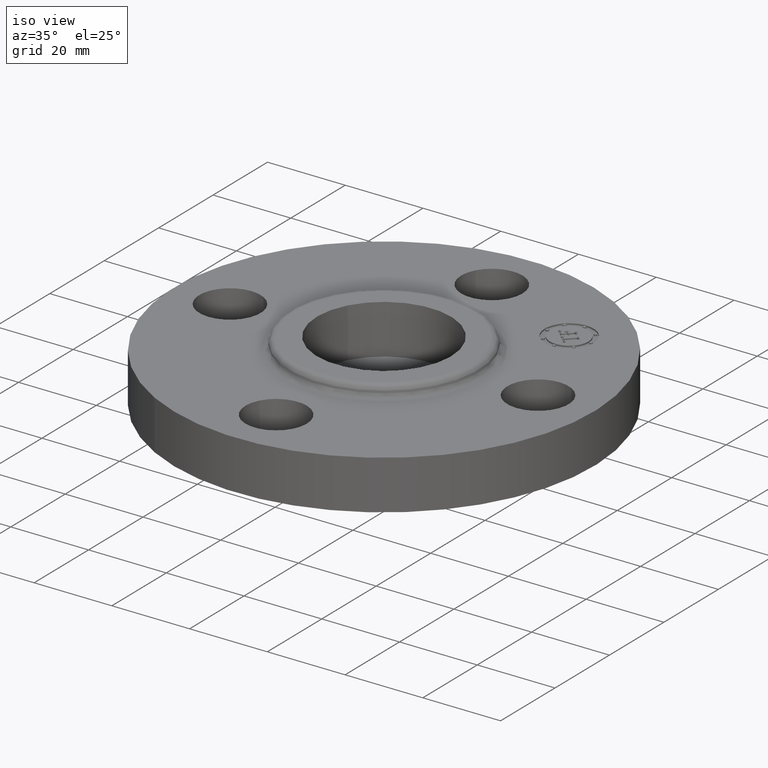
[diagram: clean part render]
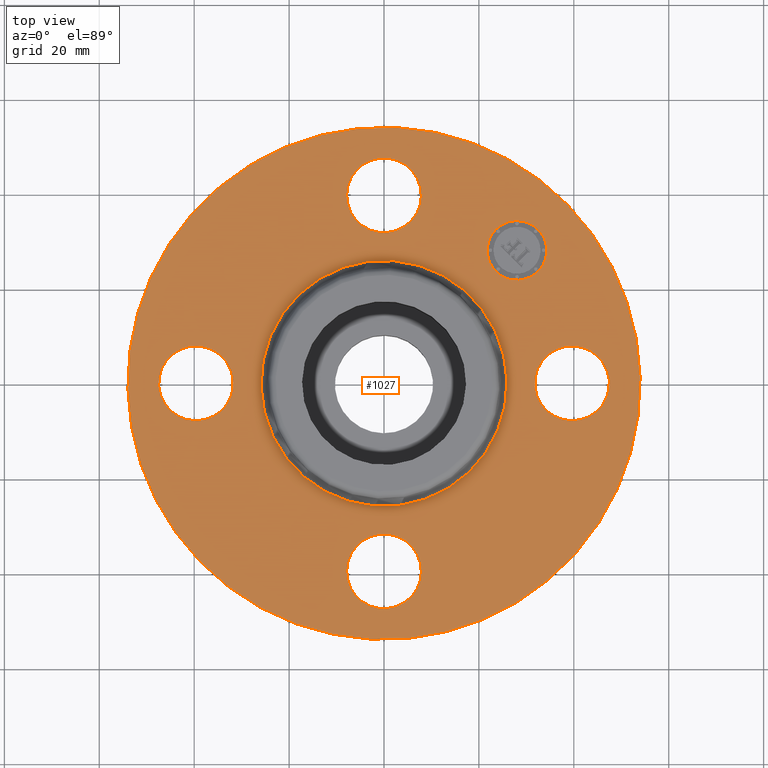
[diagram: tour spotlight — one face highlighted and labeled with its STEP entity id]
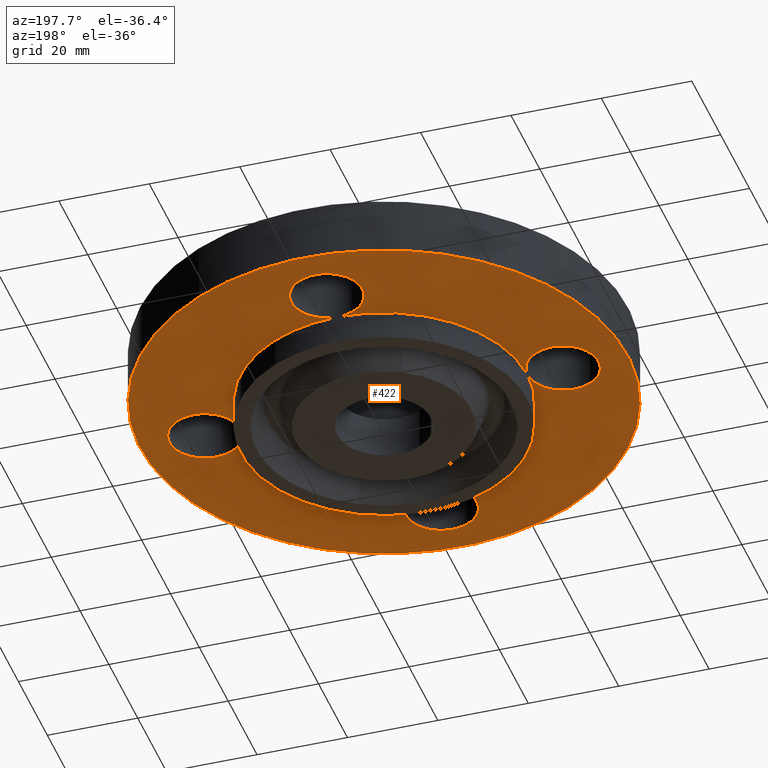
[diagram: tour spotlight — one face highlighted and labeled with its STEP entity id]
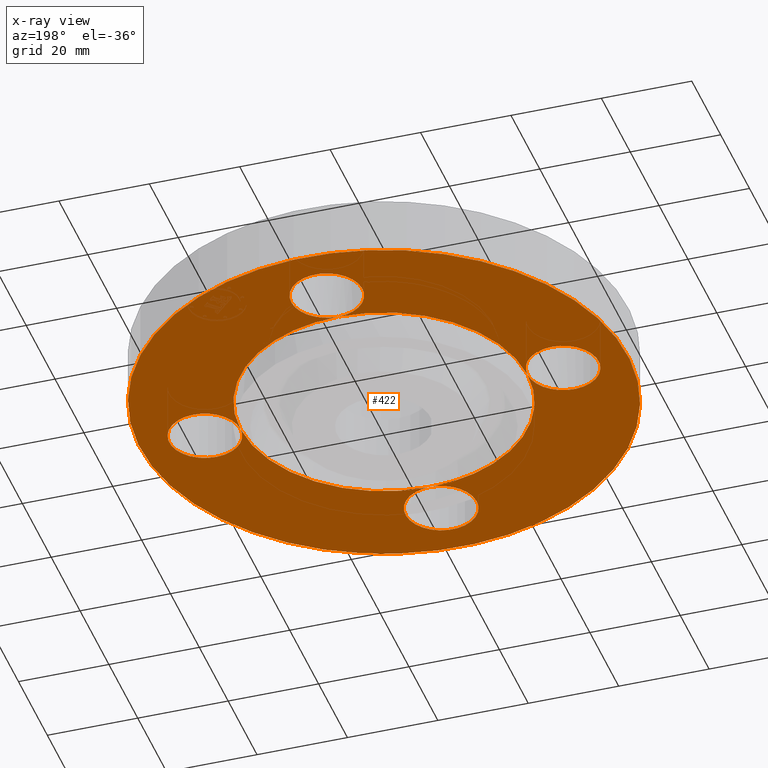
[diagram: x-ray of the same camera — body ghosted, this tour face saturated]
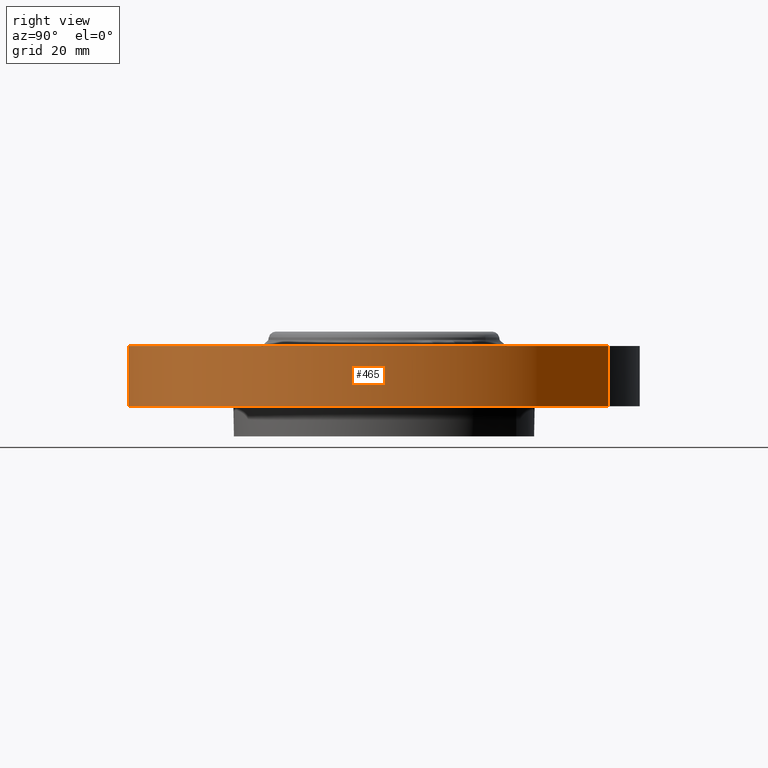
[diagram: tour spotlight — one face highlighted and labeled with its STEP entity id]
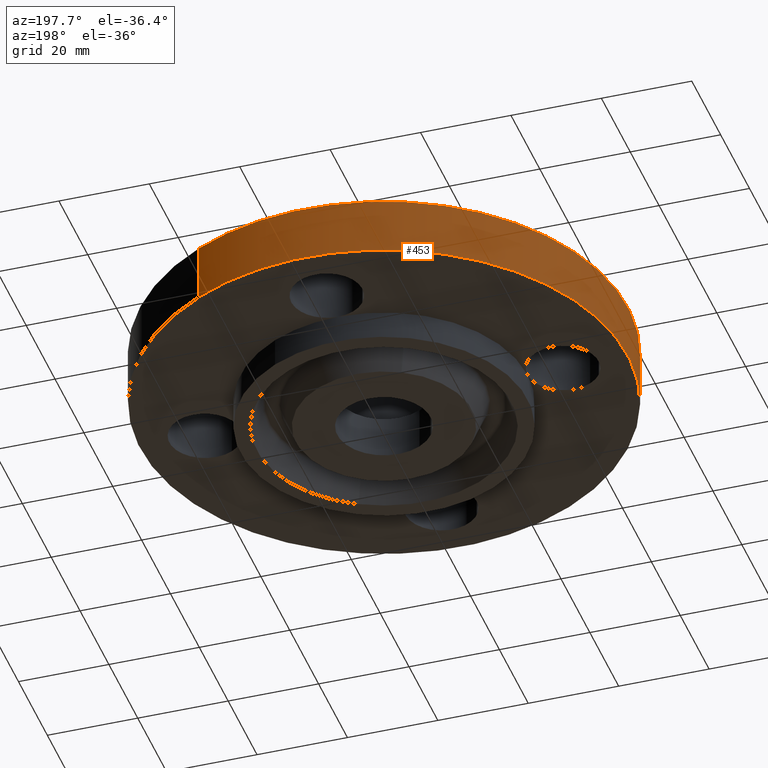
[diagram: tour spotlight — one face highlighted and labeled with its STEP entity id]
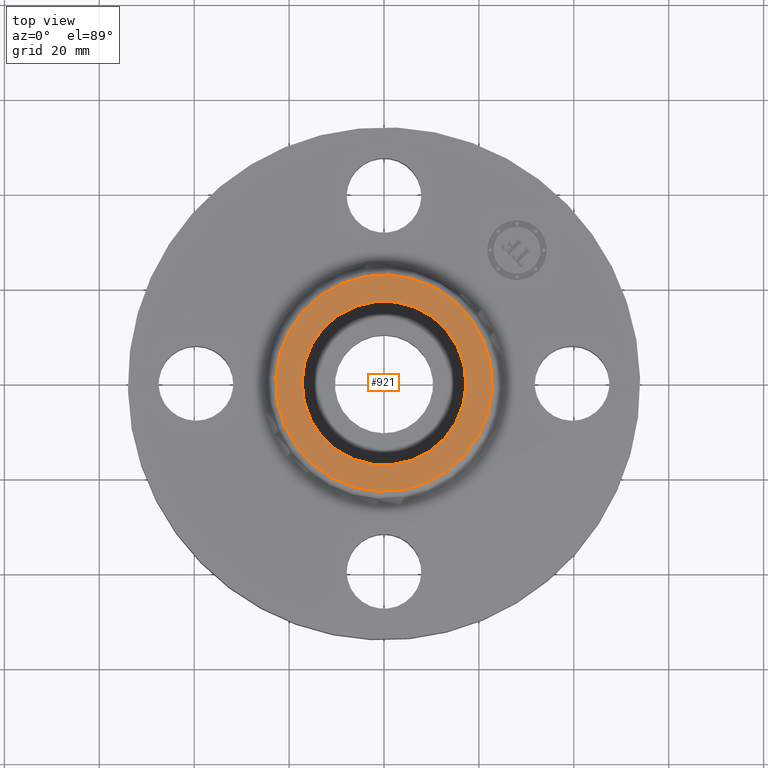
[diagram: tour spotlight — one face highlighted and labeled with its STEP entity id]
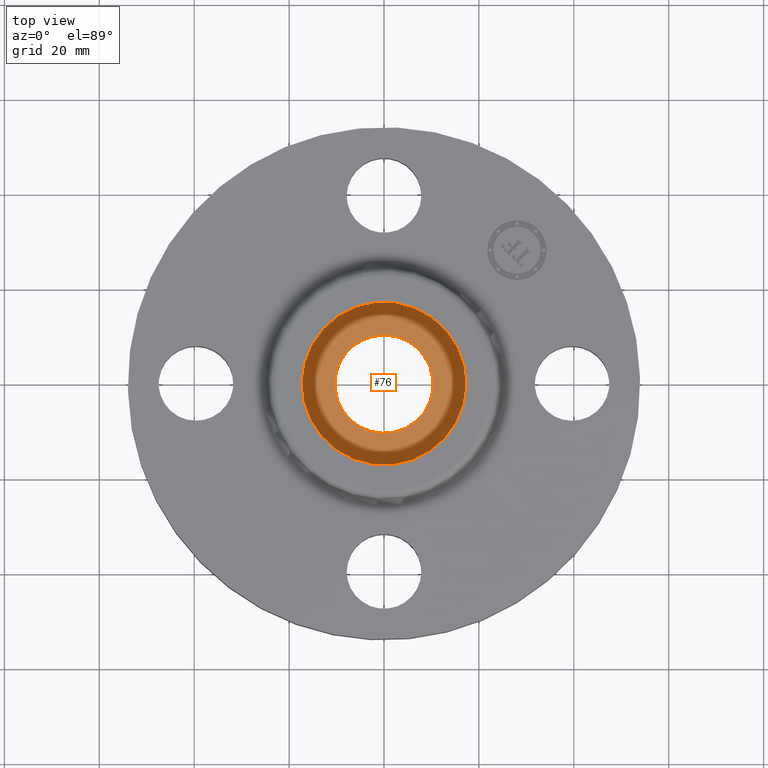
[diagram: tour spotlight — one face highlighted and labeled with its STEP entity id]
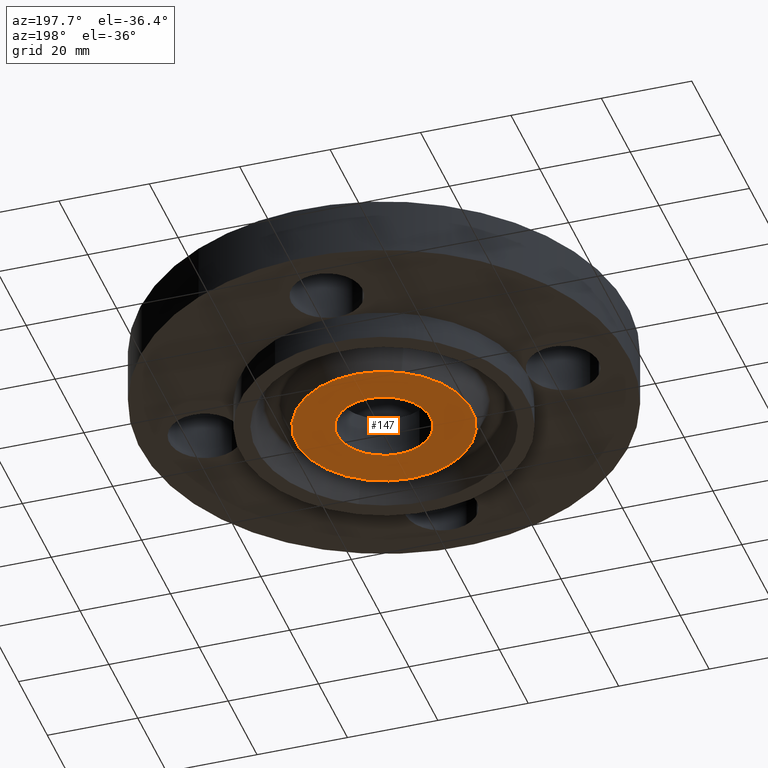
[diagram: tour spotlight — one face highlighted and labeled with its STEP entity id]
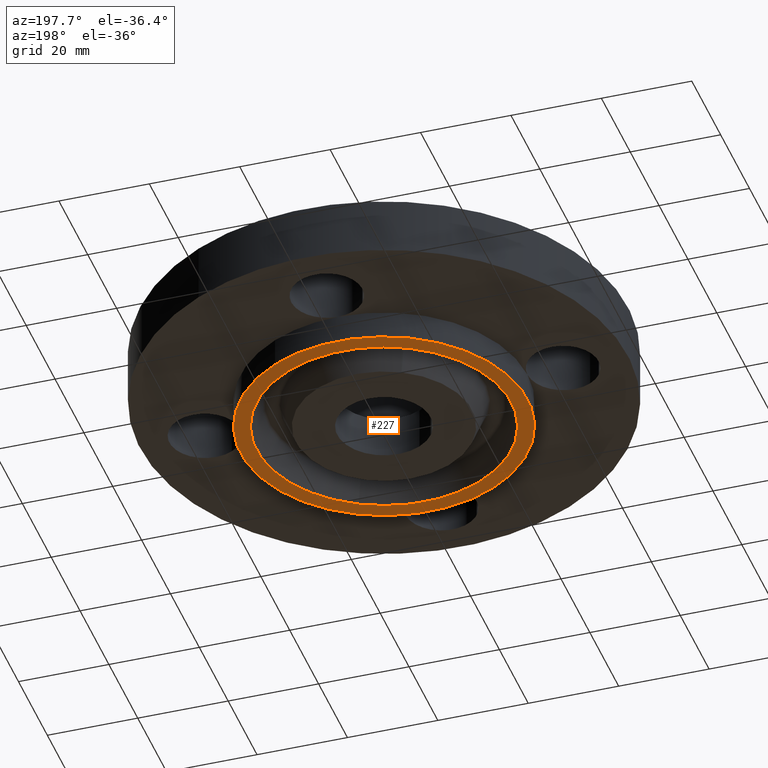
[diagram: tour spotlight — one face highlighted and labeled with its STEP entity id]
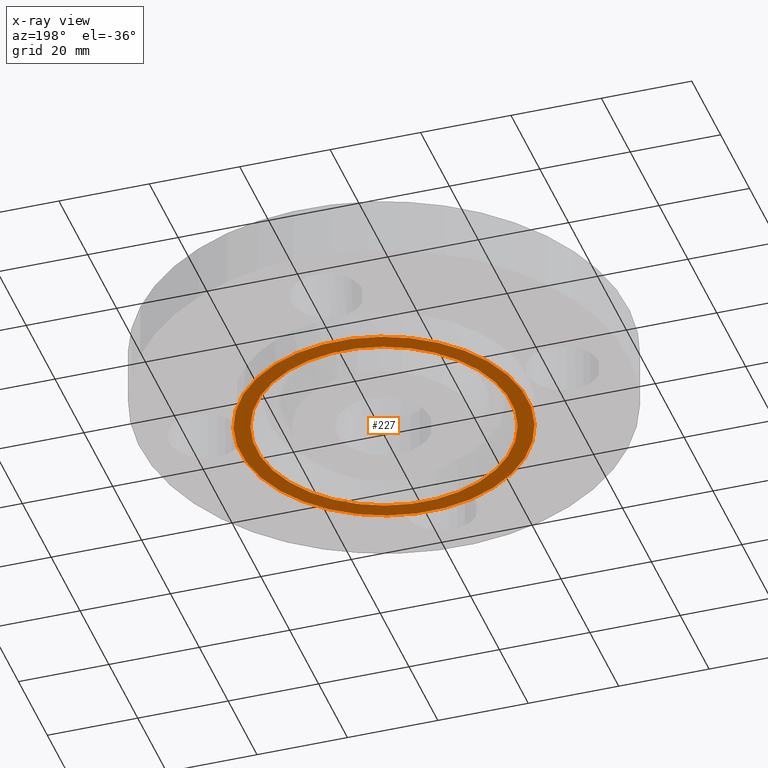
[diagram: x-ray of the same camera — body ghosted, this tour face saturated]
A machine part: a face-by-face anatomy tour. The part has 422 B-rep faces; the first image is the clean iso view, then the 8 largest visible faces are spotlighted one at a time (largest first), each with its STEP entity span.

Face 1 — top view, entity #1027. In plain terms, the highlighted planar face has unit normal (0, 0, -1).
Definition (entity closure, byte-faithful):
#437=AXIS2_PLACEMENT_3D('Circle Axis2P3D',#435,#436,$) ;
#456=AXIS2_PLACEMENT_3D('Circle Axis2P3D',#454,#455,$) ;
#487=AXIS2_PLACEMENT_3D('Circle Axis2P3D',#485,#486,$) ;
#499=AXIS2_PLACEMENT_3D('Circle Axis2P3D',#497,#498,$) ;
#531=AXIS2_PLACEMENT_3D('Circle Axis2P3D',#529,#530,$) ;
#543=AXIS2_PLACEMENT_3D('Circle Axis2P3D',#541,#542,$) ;
#575=AXIS2_PLACEMENT_3D('Circle Axis2P3D',#573,#574,$) ;
#587=AXIS2_PLACEMENT_3D('Circle Axis2P3D',#585,#586,$) ;
#619=AXIS2_PLACEMENT_3D('Circle Axis2P3D',#617,#618,$) ;
#631=AXIS2_PLACEMENT_3D('Circle Axis2P3D',#629,#630,$) ;
#649=AXIS2_PLACEMENT_3D('Circle Axis2P3D',#647,#648,$) ;
#684=AXIS2_PLACEMENT_3D('Circle Axis2P3D',#682,#683,$) ;
#983=AXIS2_PLACEMENT_3D('Plane Axis2P3D',#980,#981,#982) ;
#1011=AXIS2_PLACEMENT_3D('Circle Axis2P3D',#1009,#1010,$) ;
#1020=AXIS2_PLACEMENT_3D('Circle Axis2P3D',#1018,#1019,$) ;
#432=CARTESIAN_POINT('Vertex',(-1.01877926954,-1.86486294402,0.500000000002)) ;
#435=CARTESIAN_POINT('Axis2P3D Location',(0.,0.,0.500000000002)) ;
#439=CARTESIAN_POINT('Vertex',(1.01877926954,1.86486294402,0.500000000002)) ;
#454=CARTESIAN_POINT('Axis2P3D Location',(0.,0.,0.500000000002)) ;
#475=CARTESIAN_POINT('Vertex',(-1.70862191697,-0.272050594187,0.500000000002)) ;
#482=CARTESIAN_POINT('Vertex',(-1.41137808304,0.272050594187,0.500000000002)) ;
#485=CARTESIAN_POINT('Axis2P3D Location',(-1.56000000001,-2.86567351002E-016,0.500000000002)) ;
#497=CARTESIAN_POINT('Axis2P3D Location',(-1.56000000001,-2.86567351002E-016,0.500000000002)) ;
#519=CARTESIAN_POINT('Vertex',(-0.272050594187,1.70862191697,0.500000000002)) ;
#526=CARTESIAN_POINT('Vertex',(0.272050594187,1.41137808304,0.500000000002)) ;
#529=CARTESIAN_POINT('Axis2P3D Location',(0.,1.56000000001,0.500000000002)) ;
#541=CARTESIAN_POINT('Axis2P3D Location',(0.,1.56000000001,0.500000000002)) ;
#563=CARTESIAN_POINT('Vertex',(1.70862191697,0.272050594187,0.500000000002)) ;
#570=CARTESIAN_POINT('Vertex',(1.41137808304,-0.272050594187,0.500000000002)) ;
#573=CARTESIAN_POINT('Axis2P3D Location',(1.56000000001,-1.84218784217E-016,0.500000000002)) ;
#585=CARTESIAN_POINT('Axis2P3D Location',(1.56000000001,-1.84218784217E-016,0.500000000002)) ;
#607=CARTESIAN_POINT('Vertex',(0.272050594187,-1.70862191697,0.500000000002)) ;
#614=CARTESIAN_POINT('Vertex',(-0.272050594187,-1.41137808304,0.500000000002)) ;
#617=CARTESIAN_POINT('Axis2P3D Location',(1.91044900668E-016,-1.56000000001,0.500000000002)) ;
#629=CARTESIAN_POINT('Axis2P3D Location',(1.91044900668E-016,-1.56000000001,0.500000000002)) ;
#647=CARTESIAN_POINT('Axis2P3D Location',(0.,0.,0.500000000002)) ;
#651=CARTESIAN_POINT('Vertex',(0.489179920005,0.895437837278,0.500000000002)) ;
#653=CARTESIAN_POINT('Vertex',(-0.489179920005,-0.895437837278,0.500000000002)) ;
#682=CARTESIAN_POINT('Axis2P3D Location',(0.,0.,0.500000000002)) ;
#980=CARTESIAN_POINT('Axis2P3D Location',(0.,2.12500000001,0.500000000002)) ;
#1009=CARTESIAN_POINT('Axis2P3D Location',(1.10308657866,1.10308657866,0.500000000002)) ;
#1013=CARTESIAN_POINT('Vertex',(0.928077650311,1.278095507,0.500000000002)) ;
#1015=CARTESIAN_POINT('Vertex',(1.278095507,0.928077650311,0.500000000002)) ;
#1018=CARTESIAN_POINT('Axis2P3D Location',(1.10308657866,1.10308657866,0.500000000002)) ;
#436=DIRECTION('Axis2P3D Direction',(0.,0.,-0.0393700787402)) ;
#455=DIRECTION('Axis2P3D Direction',(0.,0.,-0.0393700787402)) ;
#486=DIRECTION('Axis2P3D Direction',(0.,0.,-0.0393700787402)) ;
#498=DIRECTION('Axis2P3D Direction',(0.,0.,-0.0393700787402)) ;
#530=DIRECTION('Axis2P3D Direction',(0.,-0.,-0.0393700787402)) ;
#542=DIRECTION('Axis2P3D Direction',(0.,-0.,-0.0393700787402)) ;
#574=DIRECTION('Axis2P3D Direction',(0.,-0.,-0.0393700787402)) ;
#586=DIRECTION('Axis2P3D Direction',(0.,-0.,-0.0393700787402)) ;
#618=DIRECTION('Axis2P3D Direction',(-0.,0.,-0.0393700787402)) ;
#630=DIRECTION('Axis2P3D Direction',(-0.,0.,-0.0393700787402)) ;
#648=DIRECTION('Axis2P3D Direction',(0.,0.,-0.0393700787402)) ;
#683=DIRECTION('Axis2P3D Direction',(0.,0.,-0.0393700787402)) ;
#981=DIRECTION('Axis2P3D Direction',(0.,0.,-0.0393700787402)) ;
#982=DIRECTION('Axis2P3D XDirection',(0.0393700787402,0.,0.)) ;
#1010=DIRECTION('Axis2P3D Direction',(0.,0.,-0.0393700787402)) ;
#1019=DIRECTION('Axis2P3D Direction',(0.,0.,-0.0393700787402)) ;
#986=ORIENTED_EDGE('',*,*,#458,.F.) ;
#987=ORIENTED_EDGE('',*,*,#441,.F.) ;
#990=ORIENTED_EDGE('',*,*,#533,.T.) ;
#991=ORIENTED_EDGE('',*,*,#545,.T.) ;
#994=ORIENTED_EDGE('',*,*,#686,.T.) ;
#995=ORIENTED_EDGE('',*,*,#655,.T.) ;
#998=ORIENTED_EDGE('',*,*,#589,.T.) ;
#999=ORIENTED_EDGE('',*,*,#577,.T.) ;
#1002=ORIENTED_EDGE('',*,*,#633,.T.) ;
#1003=ORIENTED_EDGE('',*,*,#621,.T.) ;
#1006=ORIENTED_EDGE('',*,*,#501,.T.) ;
#1007=ORIENTED_EDGE('',*,*,#489,.T.) ;
#1024=ORIENTED_EDGE('',*,*,#1017,.T.) ;
#1025=ORIENTED_EDGE('',*,*,#1022,.T.) ;
#992=FACE_BOUND('',#989,.T.) ;
#996=FACE_BOUND('',#993,.T.) ;
#1000=FACE_BOUND('',#997,.T.) ;
#1004=FACE_BOUND('',#1001,.T.) ;
#1008=FACE_BOUND('',#1005,.T.) ;
#1026=FACE_BOUND('',#1023,.T.) ;
#1027=ADVANCED_FACE('PartBody',(#988,#992,#996,#1000,#1004,#1008,#1026),#984,.F.) ;
#438=CIRCLE('generated circle',#437,2.12500000001) ;
#457=CIRCLE('generated circle',#456,2.12500000001) ;
#488=CIRCLE('generated circle',#487,0.310000000001) ;
#500=CIRCLE('generated circle',#499,0.310000000001) ;
#532=CIRCLE('generated circle',#531,0.310000000001) ;
#544=CIRCLE('generated circle',#543,0.310000000001) ;
#576=CIRCLE('generated circle',#575,0.310000000001) ;
#588=CIRCLE('generated circle',#587,0.310000000001) ;
#620=CIRCLE('generated circle',#619,0.310000000001) ;
#632=CIRCLE('generated circle',#631,0.310000000001) ;
#650=CIRCLE('generated circle',#649,1.02034597787) ;
#685=CIRCLE('generated circle',#684,1.02034597787) ;
#1012=CIRCLE('generated circle',#1011,0.247500000001) ;
#1021=CIRCLE('generated circle',#1020,0.247500000001) ;
#441=EDGE_CURVE('',#433,#440,#438,.T.) ;
#458=EDGE_CURVE('',#440,#433,#457,.T.) ;
#489=EDGE_CURVE('',#476,#483,#488,.T.) ;
#501=EDGE_CURVE('',#483,#476,#500,.T.) ;
#533=EDGE_CURVE('',#520,#527,#532,.T.) ;
#545=EDGE_CURVE('',#527,#520,#544,.T.) ;
#577=EDGE_CURVE('',#564,#571,#576,.T.) ;
#589=EDGE_CURVE('',#571,#564,#588,.T.) ;
#621=EDGE_CURVE('',#608,#615,#620,.T.) ;
#633=EDGE_CURVE('',#615,#608,#632,.T.) ;
#655=EDGE_CURVE('',#652,#654,#650,.T.) ;
#686=EDGE_CURVE('',#654,#652,#685,.T.) ;
#1017=EDGE_CURVE('',#1014,#1016,#1012,.T.) ;
#1022=EDGE_CURVE('',#1016,#1014,#1021,.T.) ;
#985=EDGE_LOOP('',(#986,#987)) ;
#989=EDGE_LOOP('',(#990,#991)) ;
#993=EDGE_LOOP('',(#994,#995)) ;
#997=EDGE_LOOP('',(#998,#999)) ;
#1001=EDGE_LOOP('',(#1002,#1003)) ;
#1005=EDGE_LOOP('',(#1006,#1007)) ;
#1023=EDGE_LOOP('',(#1024,#1025)) ;
#988=FACE_OUTER_BOUND('',#985,.T.) ;
#984=PLANE('',#983) ;
#433=VERTEX_POINT('',#432) ;
#440=VERTEX_POINT('',#439) ;
#476=VERTEX_POINT('',#475) ;
#483=VERTEX_POINT('',#482) ;
#520=VERTEX_POINT('',#519) ;
#527=VERTEX_POINT('',#526) ;
#564=VERTEX_POINT('',#563) ;
#571=VERTEX_POINT('',#570) ;
#608=VERTEX_POINT('',#607) ;
#615=VERTEX_POINT('',#614) ;
#652=VERTEX_POINT('',#651) ;
#654=VERTEX_POINT('',#653) ;
#1014=VERTEX_POINT('',#1013) ;
#1016=VERTEX_POINT('',#1015) ;

Face 2 — auxiliary view, entity #422. An x-ray twin of the same camera follows (body ghosted, this face saturated) — the face is partly hidden behind the body. In plain terms, the highlighted planar face has unit normal (0, 0, -1).
Definition (entity closure, byte-faithful):
#242=AXIS2_PLACEMENT_3D('Circle Axis2P3D',#240,#241,$) ;
#249=AXIS2_PLACEMENT_3D('Circle Axis2P3D',#247,#248,$) ;
#256=AXIS2_PLACEMENT_3D('Circle Axis2P3D',#254,#255,$) ;
#277=AXIS2_PLACEMENT_3D('Circle Axis2P3D',#275,#276,$) ;
#284=AXIS2_PLACEMENT_3D('Circle Axis2P3D',#282,#283,$) ;
#291=AXIS2_PLACEMENT_3D('Circle Axis2P3D',#289,#290,$) ;
#306=AXIS2_PLACEMENT_3D('Plane Axis2P3D',#303,#304,#305) ;
#310=AXIS2_PLACEMENT_3D('Circle Axis2P3D',#308,#309,$) ;
#319=AXIS2_PLACEMENT_3D('Circle Axis2P3D',#317,#318,$) ;
#328=AXIS2_PLACEMENT_3D('Circle Axis2P3D',#326,#327,$) ;
#335=AXIS2_PLACEMENT_3D('Circle Axis2P3D',#333,#334,$) ;
#342=AXIS2_PLACEMENT_3D('Circle Axis2P3D',#340,#341,$) ;
#347=AXIS2_PLACEMENT_3D('Circle Axis2P3D',#345,#346,$) ;
#354=AXIS2_PLACEMENT_3D('Circle Axis2P3D',#352,#353,$) ;
#361=AXIS2_PLACEMENT_3D('Circle Axis2P3D',#359,#360,$) ;
#366=AXIS2_PLACEMENT_3D('Circle Axis2P3D',#364,#365,$) ;
#373=AXIS2_PLACEMENT_3D('Circle Axis2P3D',#371,#372,$) ;
#380=AXIS2_PLACEMENT_3D('Circle Axis2P3D',#378,#379,$) ;
#385=AXIS2_PLACEMENT_3D('Circle Axis2P3D',#383,#384,$) ;
#392=AXIS2_PLACEMENT_3D('Circle Axis2P3D',#390,#391,$) ;
#399=AXIS2_PLACEMENT_3D('Circle Axis2P3D',#397,#398,$) ;
#237=CARTESIAN_POINT('Vertex',(-0.599281923258,-1.09697820237,1.04902962957E-016)) ;
#240=CARTESIAN_POINT('Axis2P3D Location',(0.,0.,1.04902962957E-016)) ;
#244=CARTESIAN_POINT('Vertex',(-1.25000000001,0.,0.)) ;
#247=CARTESIAN_POINT('Axis2P3D Location',(0.,0.,1.04902962957E-016)) ;
#251=CARTESIAN_POINT('Vertex',(3.90510912389E-015,1.25000000001,1.04902962957E-016)) ;
#254=CARTESIAN_POINT('Axis2P3D Location',(0.,0.,1.04902962957E-016)) ;
#258=CARTESIAN_POINT('Vertex',(0.599281923258,1.09697820237,1.04902962957E-016)) ;
#275=CARTESIAN_POINT('Axis2P3D Location',(0.,0.,1.04902962957E-016)) ;
#279=CARTESIAN_POINT('Vertex',(1.25000000001,-2.79741234551E-016,0.)) ;
#282=CARTESIAN_POINT('Axis2P3D Location',(0.,0.,1.04902962957E-016)) ;
#286=CARTESIAN_POINT('Vertex',(-1.04991633196E-016,-1.25000000001,0.)) ;
#289=CARTESIAN_POINT('Axis2P3D Location',(0.,0.,1.04902962957E-016)) ;
#303=CARTESIAN_POINT('Axis2P3D Location',(0.,1.25000000001,0.)) ;
#308=CARTESIAN_POINT('Axis2P3D Location',(0.,0.,0.)) ;
#312=CARTESIAN_POINT('Vertex',(-1.01877926954,-1.86486294402,1.39870617276E-016)) ;
#314=CARTESIAN_POINT('Vertex',(1.01877926954,1.86486294402,1.39870617276E-016)) ;
#317=CARTESIAN_POINT('Axis2P3D Location',(0.,0.,0.)) ;
#326=CARTESIAN_POINT('Axis2P3D Location',(2.27289753073E-016,-1.56000000001,0.)) ;
#330=CARTESIAN_POINT('Vertex',(-0.272050594187,-1.41137808304,0.)) ;
#333=CARTESIAN_POINT('Axis2P3D Location',(4.54579506146E-016,-1.56000000001,0.)) ;
#337=CARTESIAN_POINT('Vertex',(0.272050594187,-1.70862191697,0.)) ;
#340=CARTESIAN_POINT('Axis2P3D Location',(2.27289753073E-016,-1.56000000001,0.)) ;
#345=CARTESIAN_POINT('Axis2P3D Location',(1.56000000001,-4.19611851827E-016,0.)) ;
#349=CARTESIAN_POINT('Vertex',(1.41137808304,-0.272050594187,0.)) ;
#352=CARTESIAN_POINT('Axis2P3D Location',(1.56000000001,-1.39870617276E-016,0.)) ;
#356=CARTESIAN_POINT('Vertex',(1.70862191697,0.272050594187,0.)) ;
#359=CARTESIAN_POINT('Axis2P3D Location',(1.56000000001,-4.19611851827E-016,0.)) ;
#364=CARTESIAN_POINT('Axis2P3D Location',(-1.74838271595E-017,1.56000000001,0.)) ;
#368=CARTESIAN_POINT('Vertex',(0.272050594187,1.41137808304,0.)) ;
#371=CARTESIAN_POINT('Axis2P3D Location',(5.24514814784E-017,1.56000000001,0.)) ;
#375=CARTESIAN_POINT('Vertex',(-0.272050594187,1.70862191697,0.)) ;
#378=CARTESIAN_POINT('Axis2P3D Location',(-1.74838271595E-017,1.56000000001,0.)) ;
#383=CARTESIAN_POINT('Axis2P3D Location',(-1.56000000001,-1.39870617276E-016,0.)) ;
#387=CARTESIAN_POINT('Vertex',(-1.41137808304,0.272050594187,0.)) ;
#390=CARTESIAN_POINT('Axis2P3D Location',(-1.56000000001,-2.79741234551E-016,0.)) ;
#394=CARTESIAN_POINT('Vertex',(-1.70862191697,-0.272050594187,0.)) ;
#397=CARTESIAN_POINT('Axis2P3D Location',(-1.56000000001,-1.39870617276E-016,0.)) ;
#241=DIRECTION('Axis2P3D Direction',(0.,0.,-0.0393700787402)) ;
#248=DIRECTION('Axis2P3D Direction',(0.,0.,-0.0393700787402)) ;
#255=DIRECTION('Axis2P3D Direction',(0.,0.,-0.0393700787402)) ;
#276=DIRECTION('Axis2P3D Direction',(0.,0.,-0.0393700787402)) ;
#283=DIRECTION('Axis2P3D Direction',(0.,0.,-0.0393700787402)) ;
#290=DIRECTION('Axis2P3D Direction',(0.,0.,-0.0393700787402)) ;
#304=DIRECTION('Axis2P3D Direction',(0.,0.,-0.0393700787402)) ;
#305=DIRECTION('Axis2P3D XDirection',(0.0393700787402,0.,0.)) ;
#309=DIRECTION('Axis2P3D Direction',(0.,0.,-0.0393700787402)) ;
#318=DIRECTION('Axis2P3D Direction',(0.,0.,-0.0393700787402)) ;
#327=DIRECTION('Axis2P3D Direction',(0.,0.,-0.0393700787402)) ;
#334=DIRECTION('Axis2P3D Direction',(0.,0.,-0.0393700787402)) ;
#341=DIRECTION('Axis2P3D Direction',(0.,0.,-0.0393700787402)) ;
#346=DIRECTION('Axis2P3D Direction',(0.,0.,-0.0393700787402)) ;
#353=DIRECTION('Axis2P3D Direction',(0.,0.,-0.0393700787402)) ;
#360=DIRECTION('Axis2P3D Direction',(0.,0.,-0.0393700787402)) ;
#365=DIRECTION('Axis2P3D Direction',(0.,0.,-0.0393700787402)) ;
#372=DIRECTION('Axis2P3D Direction',(0.,0.,-0.0393700787402)) ;
#379=DIRECTION('Axis2P3D Direction',(0.,0.,-0.0393700787402)) ;
#384=DIRECTION('Axis2P3D Direction',(0.,0.,-0.0393700787402)) ;
#391=DIRECTION('Axis2P3D Direction',(0.,0.,-0.0393700787402)) ;
#398=DIRECTION('Axis2P3D Direction',(0.,0.,-0.0393700787402)) ;
#323=ORIENTED_EDGE('',*,*,#316,.T.) ;
#324=ORIENTED_EDGE('',*,*,#321,.T.) ;
#403=ORIENTED_EDGE('',*,*,#332,.F.) ;
#404=ORIENTED_EDGE('',*,*,#339,.F.) ;
#405=ORIENTED_EDGE('',*,*,#344,.F.) ;
#406=ORIENTED_EDGE('',*,*,#288,.F.) ;
#407=ORIENTED_EDGE('',*,*,#351,.F.) ;
#408=ORIENTED_EDGE('',*,*,#358,.F.) ;
#409=ORIENTED_EDGE('',*,*,#363,.F.) ;
#410=ORIENTED_EDGE('',*,*,#281,.F.) ;
#411=ORIENTED_EDGE('',*,*,#260,.F.) ;
#412=ORIENTED_EDGE('',*,*,#370,.F.) ;
#413=ORIENTED_EDGE('',*,*,#377,.F.) ;
#414=ORIENTED_EDGE('',*,*,#382,.F.) ;
#415=ORIENTED_EDGE('',*,*,#253,.F.) ;
#416=ORIENTED_EDGE('',*,*,#389,.F.) ;
#417=ORIENTED_EDGE('',*,*,#396,.F.) ;
#418=ORIENTED_EDGE('',*,*,#401,.F.) ;
#419=ORIENTED_EDGE('',*,*,#246,.F.) ;
#420=ORIENTED_EDGE('',*,*,#293,.F.) ;
#421=FACE_BOUND('',#402,.T.) ;
#422=ADVANCED_FACE('PartBody',(#325,#421),#307,.T.) ;
#243=CIRCLE('generated circle',#242,1.25000000001) ;
#250=CIRCLE('generated circle',#249,1.25000000001) ;
#257=CIRCLE('generated circle',#256,1.25000000001) ;
#278=CIRCLE('generated circle',#277,1.25000000001) ;
#285=CIRCLE('generated circle',#284,1.25000000001) ;
#292=CIRCLE('generated circle',#291,1.25000000001) ;
#311=CIRCLE('generated circle',#310,2.12500000001) ;
#320=CIRCLE('generated circle',#319,2.12500000001) ;
#329=CIRCLE('generated circle',#328,0.310000000001) ;
#336=CIRCLE('generated circle',#335,0.310000000001) ;
#343=CIRCLE('generated circle',#342,0.310000000001) ;
#348=CIRCLE('generated circle',#347,0.310000000001) ;
#355=CIRCLE('generated circle',#354,0.310000000001) ;
#362=CIRCLE('generated circle',#361,0.310000000001) ;
#367=CIRCLE('generated circle',#366,0.310000000001) ;
#374=CIRCLE('generated circle',#373,0.310000000001) ;
#381=CIRCLE('generated circle',#380,0.310000000001) ;
#386=CIRCLE('generated circle',#385,0.310000000001) ;
#393=CIRCLE('generated circle',#392,0.310000000001) ;
#400=CIRCLE('generated circle',#399,0.310000000001) ;
#246=EDGE_CURVE('',#238,#245,#243,.T.) ;
#253=EDGE_CURVE('',#245,#252,#250,.T.) ;
#260=EDGE_CURVE('',#252,#259,#257,.T.) ;
#281=EDGE_CURVE('',#259,#280,#278,.T.) ;
#288=EDGE_CURVE('',#280,#287,#285,.T.) ;
#293=EDGE_CURVE('',#287,#238,#292,.T.) ;
#316=EDGE_CURVE('',#313,#315,#311,.T.) ;
#321=EDGE_CURVE('',#315,#313,#320,.T.) ;
#332=EDGE_CURVE('',#331,#287,#329,.T.) ;
#339=EDGE_CURVE('',#338,#331,#336,.T.) ;
#344=EDGE_CURVE('',#287,#338,#343,.T.) ;
#351=EDGE_CURVE('',#350,#280,#348,.T.) ;
#358=EDGE_CURVE('',#357,#350,#355,.T.) ;
#363=EDGE_CURVE('',#280,#357,#362,.T.) ;
#370=EDGE_CURVE('',#369,#252,#367,.T.) ;
#377=EDGE_CURVE('',#376,#369,#374,.T.) ;
#382=EDGE_CURVE('',#252,#376,#381,.T.) ;
#389=EDGE_CURVE('',#388,#245,#386,.T.) ;
#396=EDGE_CURVE('',#395,#388,#393,.T.) ;
#401=EDGE_CURVE('',#245,#395,#400,.T.) ;
#322=EDGE_LOOP('',(#323,#324)) ;
#402=EDGE_LOOP('',(#403,#404,#405,#406,#407,#408,#409,#410,#411,#412,#413,#414,#415,#416,#417,#418,#419,#420)) ;
#325=FACE_OUTER_BOUND('',#322,.T.) ;
#307=PLANE('',#306) ;
#238=VERTEX_POINT('',#237) ;
#245=VERTEX_POINT('',#244) ;
#252=VERTEX_POINT('',#251) ;
#259=VERTEX_POINT('',#258) ;
#280=VERTEX_POINT('',#279) ;
#287=VERTEX_POINT('',#286) ;
#313=VERTEX_POINT('',#312) ;
#315=VERTEX_POINT('',#314) ;
#331=VERTEX_POINT('',#330) ;
#338=VERTEX_POINT('',#337) ;
#350=VERTEX_POINT('',#349) ;
#357=VERTEX_POINT('',#356) ;
#369=VERTEX_POINT('',#368) ;
#376=VERTEX_POINT('',#375) ;
#388=VERTEX_POINT('',#387) ;
#395=VERTEX_POINT('',#394) ;

Face 3 — right view, entity #465. In plain terms, the highlighted cylindrical surface (partial cylindrical patch) has radius 53.975 mm, axis along (0, 0, -1).
Definition (entity closure, byte-faithful):
#319=AXIS2_PLACEMENT_3D('Circle Axis2P3D',#317,#318,$) ;
#426=AXIS2_PLACEMENT_3D('Cylinder Axis2P3D',#423,#424,#425) ;
#456=AXIS2_PLACEMENT_3D('Circle Axis2P3D',#454,#455,$) ;
#312=CARTESIAN_POINT('Vertex',(-1.01877926954,-1.86486294402,1.39870617276E-016)) ;
#314=CARTESIAN_POINT('Vertex',(1.01877926954,1.86486294402,1.39870617276E-016)) ;
#317=CARTESIAN_POINT('Axis2P3D Location',(0.,0.,0.)) ;
#423=CARTESIAN_POINT('Axis2P3D Location',(0.,0.,0.185000000001)) ;
#428=CARTESIAN_POINT('Line Origine',(-1.01877926954,-1.86486294402,0.250000000001)) ;
#432=CARTESIAN_POINT('Vertex',(-1.01877926954,-1.86486294402,0.500000000002)) ;
#439=CARTESIAN_POINT('Vertex',(1.01877926954,1.86486294402,0.500000000002)) ;
#442=CARTESIAN_POINT('Line Origine',(1.01877926954,1.86486294402,0.250000000001)) ;
#454=CARTESIAN_POINT('Axis2P3D Location',(0.,0.,0.500000000002)) ;
#318=DIRECTION('Axis2P3D Direction',(0.,0.,-0.0393700787402)) ;
#424=DIRECTION('Axis2P3D Direction',(0.,0.,-0.0393700787402)) ;
#425=DIRECTION('Axis2P3D XDirection',(0.0188750212049,0.0345504945626,0.)) ;
#429=DIRECTION('Vector Direction',(0.,0.,-0.0393700787402)) ;
#443=DIRECTION('Vector Direction',(0.,0.,-0.0393700787402)) ;
#455=DIRECTION('Axis2P3D Direction',(0.,0.,-0.0393700787402)) ;
#430=VECTOR('Line Direction',#429,0.0393700787402) ;
#444=VECTOR('Line Direction',#443,0.0393700787402) ;
#460=ORIENTED_EDGE('',*,*,#321,.F.) ;
#461=ORIENTED_EDGE('',*,*,#446,.T.) ;
#462=ORIENTED_EDGE('',*,*,#458,.T.) ;
#463=ORIENTED_EDGE('',*,*,#434,.F.) ;
#465=ADVANCED_FACE('PartBody',(#464),#427,.T.) ;
#320=CIRCLE('generated circle',#319,2.12500000001) ;
#457=CIRCLE('generated circle',#456,2.12500000001) ;
#427=CYLINDRICAL_SURFACE('generated cylinder',#426,2.12500000001) ;
#321=EDGE_CURVE('',#315,#313,#320,.T.) ;
#434=EDGE_CURVE('',#313,#433,#431,.F.) ;
#446=EDGE_CURVE('',#315,#440,#445,.F.) ;
#458=EDGE_CURVE('',#440,#433,#457,.T.) ;
#459=EDGE_LOOP('',(#460,#461,#462,#463)) ;
#464=FACE_OUTER_BOUND('',#459,.T.) ;
#431=LINE('Line',#428,#430) ;
#445=LINE('Line',#442,#444) ;
#313=VERTEX_POINT('',#312) ;
#315=VERTEX_POINT('',#314) ;
#433=VERTEX_POINT('',#432) ;
#440=VERTEX_POINT('',#439) ;

Face 4 — auxiliary view, entity #453. In plain terms, the highlighted cylindrical surface (partial cylindrical patch) has radius 53.975 mm, axis along (0, 0, -1).
Definition (entity closure, byte-faithful):
#310=AXIS2_PLACEMENT_3D('Circle Axis2P3D',#308,#309,$) ;
#426=AXIS2_PLACEMENT_3D('Cylinder Axis2P3D',#423,#424,#425) ;
#437=AXIS2_PLACEMENT_3D('Circle Axis2P3D',#435,#436,$) ;
#308=CARTESIAN_POINT('Axis2P3D Location',(0.,0.,0.)) ;
#312=CARTESIAN_POINT('Vertex',(-1.01877926954,-1.86486294402,1.39870617276E-016)) ;
#314=CARTESIAN_POINT('Vertex',(1.01877926954,1.86486294402,1.39870617276E-016)) ;
#423=CARTESIAN_POINT('Axis2P3D Location',(0.,0.,0.185000000001)) ;
#428=CARTESIAN_POINT('Line Origine',(-1.01877926954,-1.86486294402,0.250000000001)) ;
#432=CARTESIAN_POINT('Vertex',(-1.01877926954,-1.86486294402,0.500000000002)) ;
#435=CARTESIAN_POINT('Axis2P3D Location',(0.,0.,0.500000000002)) ;
#439=CARTESIAN_POINT('Vertex',(1.01877926954,1.86486294402,0.500000000002)) ;
#442=CARTESIAN_POINT('Line Origine',(1.01877926954,1.86486294402,0.250000000001)) ;
#309=DIRECTION('Axis2P3D Direction',(0.,0.,-0.0393700787402)) ;
#424=DIRECTION('Axis2P3D Direction',(0.,0.,-0.0393700787402)) ;
#425=DIRECTION('Axis2P3D XDirection',(0.0188750212049,0.0345504945626,0.)) ;
#429=DIRECTION('Vector Direction',(0.,0.,-0.0393700787402)) ;
#436=DIRECTION('Axis2P3D Direction',(0.,0.,-0.0393700787402)) ;
#443=DIRECTION('Vector Direction',(0.,0.,-0.0393700787402)) ;
#430=VECTOR('Line Direction',#429,0.0393700787402) ;
#444=VECTOR('Line Direction',#443,0.0393700787402) ;
#448=ORIENTED_EDGE('',*,*,#316,.F.) ;
#449=ORIENTED_EDGE('',*,*,#434,.T.) ;
#450=ORIENTED_EDGE('',*,*,#441,.T.) ;
#451=ORIENTED_EDGE('',*,*,#446,.F.) ;
#453=ADVANCED_FACE('PartBody',(#452),#427,.T.) ;
#311=CIRCLE('generated circle',#310,2.12500000001) ;
#438=CIRCLE('generated circle',#437,2.12500000001) ;
#427=CYLINDRICAL_SURFACE('generated cylinder',#426,2.12500000001) ;
#316=EDGE_CURVE('',#313,#315,#311,.T.) ;
#434=EDGE_CURVE('',#313,#433,#431,.F.) ;
#441=EDGE_CURVE('',#433,#440,#438,.T.) ;
#446=EDGE_CURVE('',#315,#440,#445,.F.) ;
#447=EDGE_LOOP('',(#448,#449,#450,#451)) ;
#452=FACE_OUTER_BOUND('',#447,.T.) ;
#431=LINE('Line',#428,#430) ;
#445=LINE('Line',#442,#444) ;
#313=VERTEX_POINT('',#312) ;
#315=VERTEX_POINT('',#314) ;
#433=VERTEX_POINT('',#432) ;
#440=VERTEX_POINT('',#439) ;

Face 5 — top view, entity #921. In plain terms, the highlighted planar face has unit normal (0, 0, -1).
Definition (entity closure, byte-faithful):
#842=AXIS2_PLACEMENT_3D('Circle Axis2P3D',#840,#841,$) ;
#861=AXIS2_PLACEMENT_3D('Circle Axis2P3D',#859,#860,$) ;
#897=AXIS2_PLACEMENT_3D('Plane Axis2P3D',#894,#895,#896) ;
#905=AXIS2_PLACEMENT_3D('Circle Axis2P3D',#903,#904,$) ;
#914=AXIS2_PLACEMENT_3D('Circle Axis2P3D',#912,#913,$) ;
#837=CARTESIAN_POINT('Vertex',(0.430761345967,0.788503354781,0.620000000002)) ;
#840=CARTESIAN_POINT('Axis2P3D Location',(0.,0.,0.620000000002)) ;
#844=CARTESIAN_POINT('Vertex',(-0.430761345967,-0.788503354781,0.620000000002)) ;
#859=CARTESIAN_POINT('Axis2P3D Location',(0.,0.,0.620000000002)) ;
#894=CARTESIAN_POINT('Axis2P3D Location',(0.,0.898494784448,0.620000000002)) ;
#903=CARTESIAN_POINT('Axis2P3D Location',(1.04902962957E-016,-1.39870617276E-016,0.620000000002)) ;
#907=CARTESIAN_POINT('Vertex',(-0.596756142088,0.326009366252,0.620000000002)) ;
#909=CARTESIAN_POINT('Vertex',(0.596756142088,-0.326009366252,0.620000000002)) ;
#912=CARTESIAN_POINT('Axis2P3D Location',(1.57354444435E-016,-2.79741234551E-016,0.620000000002)) ;
#841=DIRECTION('Axis2P3D Direction',(0.,0.,-0.0393700787402)) ;
#860=DIRECTION('Axis2P3D Direction',(0.,0.,-0.0393700787402)) ;
#895=DIRECTION('Axis2P3D Direction',(0.,0.,-0.0393700787402)) ;
#896=DIRECTION('Axis2P3D XDirection',(0.0393700787402,0.,0.)) ;
#904=DIRECTION('Axis2P3D Direction',(0.,0.,-0.0393700787402)) ;
#913=DIRECTION('Axis2P3D Direction',(0.,0.,-0.0393700787402)) ;
#900=ORIENTED_EDGE('',*,*,#846,.F.) ;
#901=ORIENTED_EDGE('',*,*,#863,.F.) ;
#918=ORIENTED_EDGE('',*,*,#911,.T.) ;
#919=ORIENTED_EDGE('',*,*,#916,.T.) ;
#920=FACE_BOUND('',#917,.T.) ;
#921=ADVANCED_FACE('PartBody',(#902,#920),#898,.F.) ;
#843=CIRCLE('generated circle',#842,0.898494784448) ;
#862=CIRCLE('generated circle',#861,0.898494784448) ;
#906=CIRCLE('generated circle',#905,0.680000000003) ;
#915=CIRCLE('generated circle',#914,0.680000000003) ;
#846=EDGE_CURVE('',#838,#845,#843,.T.) ;
#863=EDGE_CURVE('',#845,#838,#862,.T.) ;
#911=EDGE_CURVE('',#908,#910,#906,.T.) ;
#916=EDGE_CURVE('',#910,#908,#915,.T.) ;
#899=EDGE_LOOP('',(#900,#901)) ;
#917=EDGE_LOOP('',(#918,#919)) ;
#902=FACE_OUTER_BOUND('',#899,.T.) ;
#898=PLANE('',#897) ;
#838=VERTEX_POINT('',#837) ;
#845=VERTEX_POINT('',#844) ;
#908=VERTEX_POINT('',#907) ;
#910=VERTEX_POINT('',#909) ;

Face 6 — top view, entity #76. In plain terms, the highlighted planar face has unit normal (0, 0, -1).
Definition (entity closure, byte-faithful):
#38=AXIS2_PLACEMENT_3D('Plane Axis2P3D',#35,#36,#37) ;
#42=AXIS2_PLACEMENT_3D('Circle Axis2P3D',#40,#41,$) ;
#51=AXIS2_PLACEMENT_3D('Circle Axis2P3D',#49,#50,$) ;
#60=AXIS2_PLACEMENT_3D('Circle Axis2P3D',#58,#59,$) ;
#69=AXIS2_PLACEMENT_3D('Circle Axis2P3D',#67,#68,$) ;
#35=CARTESIAN_POINT('Axis2P3D Location',(1.04902962957E-016,-6.99353086378E-017,0.12)) ;
#40=CARTESIAN_POINT('Axis2P3D Location',(1.04902962957E-016,-6.99353086378E-017,0.12)) ;
#44=CARTESIAN_POINT('Vertex',(-0.596756142088,0.326009366252,0.12)) ;
#46=CARTESIAN_POINT('Vertex',(0.596756142088,-0.326009366252,0.12)) ;
#49=CARTESIAN_POINT('Axis2P3D Location',(1.04902962957E-016,-6.99353086378E-017,0.12)) ;
#58=CARTESIAN_POINT('Axis2P3D Location',(-3.49676543189E-017,0.,0.12)) ;
#62=CARTESIAN_POINT('Vertex',(-0.195365906982,-0.357614893972,0.12)) ;
#64=CARTESIAN_POINT('Vertex',(0.195365906982,0.357614893972,0.12)) ;
#67=CARTESIAN_POINT('Axis2P3D Location',(6.99353086378E-017,0.,0.12)) ;
#36=DIRECTION('Axis2P3D Direction',(0.,0.,-0.0393700787402)) ;
#37=DIRECTION('Axis2P3D XDirection',(0.0393700787402,0.,0.)) ;
#41=DIRECTION('Axis2P3D Direction',(0.,0.,-0.0393700787402)) ;
#50=DIRECTION('Axis2P3D Direction',(0.,0.,-0.0393700787402)) ;
#59=DIRECTION('Axis2P3D Direction',(0.,0.,-0.0393700787402)) ;
#68=DIRECTION('Axis2P3D Direction',(0.,0.,-0.0393700787402)) ;
#55=ORIENTED_EDGE('',*,*,#48,.F.) ;
#56=ORIENTED_EDGE('',*,*,#53,.F.) ;
#73=ORIENTED_EDGE('',*,*,#66,.T.) ;
#74=ORIENTED_EDGE('',*,*,#71,.T.) ;
#75=FACE_BOUND('',#72,.T.) ;
#76=ADVANCED_FACE('PartBody',(#57,#75),#39,.F.) ;
#43=CIRCLE('generated circle',#42,0.680000000003) ;
#52=CIRCLE('generated circle',#51,0.680000000003) ;
#61=CIRCLE('generated circle',#60,0.407500000002) ;
#70=CIRCLE('generated circle',#69,0.407500000002) ;
#48=EDGE_CURVE('',#45,#47,#43,.T.) ;
#53=EDGE_CURVE('',#47,#45,#52,.T.) ;
#66=EDGE_CURVE('',#63,#65,#61,.T.) ;
#71=EDGE_CURVE('',#65,#63,#70,.T.) ;
#54=EDGE_LOOP('',(#55,#56)) ;
#72=EDGE_LOOP('',(#73,#74)) ;
#57=FACE_OUTER_BOUND('',#54,.T.) ;
#39=PLANE('',#38) ;
#45=VERTEX_POINT('',#44) ;
#47=VERTEX_POINT('',#46) ;
#63=VERTEX_POINT('',#62) ;
#65=VERTEX_POINT('',#64) ;

Face 7 — auxiliary view, entity #147. In plain terms, the highlighted planar face has unit normal (0, 0, -1).
Definition (entity closure, byte-faithful):
#91=AXIS2_PLACEMENT_3D('Circle Axis2P3D',#89,#90,$) ;
#110=AXIS2_PLACEMENT_3D('Circle Axis2P3D',#108,#109,$) ;
#123=AXIS2_PLACEMENT_3D('Plane Axis2P3D',#120,#121,#122) ;
#127=AXIS2_PLACEMENT_3D('Circle Axis2P3D',#125,#126,$) ;
#136=AXIS2_PLACEMENT_3D('Circle Axis2P3D',#134,#135,$) ;
#86=CARTESIAN_POINT('Vertex',(0.195365906982,0.357614893972,-0.250000000001)) ;
#89=CARTESIAN_POINT('Axis2P3D Location',(0.,0.,-0.250000000001)) ;
#93=CARTESIAN_POINT('Vertex',(-0.195365906982,-0.357614893972,-0.250000000001)) ;
#108=CARTESIAN_POINT('Axis2P3D Location',(0.,0.,-0.250000000001)) ;
#120=CARTESIAN_POINT('Axis2P3D Location',(0.,0.407500000002,-0.250000000001)) ;
#125=CARTESIAN_POINT('Axis2P3D Location',(0.,0.,-0.250000000001)) ;
#129=CARTESIAN_POINT('Vertex',(-0.367060177995,0.67189914895,-0.250000000001)) ;
#131=CARTESIAN_POINT('Vertex',(0.367060177995,-0.67189914895,-0.250000000001)) ;
#134=CARTESIAN_POINT('Axis2P3D Location',(-2.79741234551E-016,6.99353086378E-017,-0.250000000001)) ;
#90=DIRECTION('Axis2P3D Direction',(0.,0.,-0.0393700787402)) ;
#109=DIRECTION('Axis2P3D Direction',(0.,0.,-0.0393700787402)) ;
#121=DIRECTION('Axis2P3D Direction',(0.,0.,-0.0393700787402)) ;
#122=DIRECTION('Axis2P3D XDirection',(0.0393700787402,0.,0.)) ;
#126=DIRECTION('Axis2P3D Direction',(0.,0.,-0.0393700787402)) ;
#135=DIRECTION('Axis2P3D Direction',(0.,0.,-0.0393700787402)) ;
#140=ORIENTED_EDGE('',*,*,#133,.T.) ;
#141=ORIENTED_EDGE('',*,*,#138,.T.) ;
#144=ORIENTED_EDGE('',*,*,#95,.F.) ;
#145=ORIENTED_EDGE('',*,*,#112,.F.) ;
#146=FACE_BOUND('',#143,.T.) ;
#147=ADVANCED_FACE('PartBody',(#142,#146),#124,.T.) ;
#92=CIRCLE('generated circle',#91,0.407500000002) ;
#111=CIRCLE('generated circle',#110,0.407500000002) ;
#128=CIRCLE('generated circle',#127,0.765625000003) ;
#137=CIRCLE('generated circle',#136,0.765625000003) ;
#95=EDGE_CURVE('',#87,#94,#92,.T.) ;
#112=EDGE_CURVE('',#94,#87,#111,.T.) ;
#133=EDGE_CURVE('',#130,#132,#128,.T.) ;
#138=EDGE_CURVE('',#132,#130,#137,.T.) ;
#139=EDGE_LOOP('',(#140,#141)) ;
#143=EDGE_LOOP('',(#144,#145)) ;
#142=FACE_OUTER_BOUND('',#139,.T.) ;
#124=PLANE('',#123) ;
#87=VERTEX_POINT('',#86) ;
#94=VERTEX_POINT('',#93) ;
#130=VERTEX_POINT('',#129) ;
#132=VERTEX_POINT('',#131) ;

Face 8 — auxiliary view, entity #227. An x-ray twin of the same camera follows (body ghosted, this face saturated) — the face is partly hidden behind the body. In plain terms, the highlighted planar face has unit normal (0, 0, -1).
Definition (entity closure, byte-faithful):
#123=AXIS2_PLACEMENT_3D('Plane Axis2P3D',#120,#121,#122) ;
#193=AXIS2_PLACEMENT_3D('Circle Axis2P3D',#191,#192,$) ;
#202=AXIS2_PLACEMENT_3D('Circle Axis2P3D',#200,#201,$) ;
#211=AXIS2_PLACEMENT_3D('Circle Axis2P3D',#209,#210,$) ;
#220=AXIS2_PLACEMENT_3D('Circle Axis2P3D',#218,#219,$) ;
#120=CARTESIAN_POINT('Axis2P3D Location',(0.,0.407500000002,-0.250000000001)) ;
#191=CARTESIAN_POINT('Axis2P3D Location',(0.,0.,-0.250000000001)) ;
#195=CARTESIAN_POINT('Vertex',(-0.599281923258,-1.09697820237,-0.250000000001)) ;
#197=CARTESIAN_POINT('Vertex',(0.599281923258,1.09697820237,-0.250000000001)) ;
#200=CARTESIAN_POINT('Axis2P3D Location',(0.,0.,-0.250000000001)) ;
#209=CARTESIAN_POINT('Axis2P3D Location',(2.09805925913E-016,6.99353086378E-017,-0.250000000001)) ;
#213=CARTESIAN_POINT('Vertex',(0.531862706891,-0.973568154601,-0.250000000001)) ;
#215=CARTESIAN_POINT('Vertex',(-0.531862706891,0.973568154601,-0.250000000001)) ;
#218=CARTESIAN_POINT('Axis2P3D Location',(6.99353086378E-017,3.49676543189E-016,-0.250000000001)) ;
#121=DIRECTION('Axis2P3D Direction',(0.,0.,-0.0393700787402)) ;
#122=DIRECTION('Axis2P3D XDirection',(0.0393700787402,0.,0.)) ;
#192=DIRECTION('Axis2P3D Direction',(0.,0.,-0.0393700787402)) ;
#201=DIRECTION('Axis2P3D Direction',(0.,0.,-0.0393700787402)) ;
#210=DIRECTION('Axis2P3D Direction',(0.,0.,-0.0393700787402)) ;
#219=DIRECTION('Axis2P3D Direction',(0.,0.,-0.0393700787402)) ;
#206=ORIENTED_EDGE('',*,*,#199,.T.) ;
#207=ORIENTED_EDGE('',*,*,#204,.T.) ;
#224=ORIENTED_EDGE('',*,*,#217,.F.) ;
#225=ORIENTED_EDGE('',*,*,#222,.F.) ;
#226=FACE_BOUND('',#223,.T.) ;
#227=ADVANCED_FACE('PartBody',(#208,#226),#124,.T.) ;
#194=CIRCLE('generated circle',#193,1.25000000001) ;
#203=CIRCLE('generated circle',#202,1.25000000001) ;
#212=CIRCLE('generated circle',#211,1.109375) ;
#221=CIRCLE('generated circle',#220,1.109375) ;
#199=EDGE_CURVE('',#196,#198,#194,.T.) ;
#204=EDGE_CURVE('',#198,#196,#203,.T.) ;
#217=EDGE_CURVE('',#214,#216,#212,.T.) ;
#222=EDGE_CURVE('',#216,#214,#221,.T.) ;
#205=EDGE_LOOP('',(#206,#207)) ;
#223=EDGE_LOOP('',(#224,#225)) ;
#208=FACE_OUTER_BOUND('',#205,.T.) ;
#124=PLANE('',#123) ;
#196=VERTEX_POINT('',#195) ;
#198=VERTEX_POINT('',#197) ;
#214=VERTEX_POINT('',#213) ;
#216=VERTEX_POINT('',#215) ;